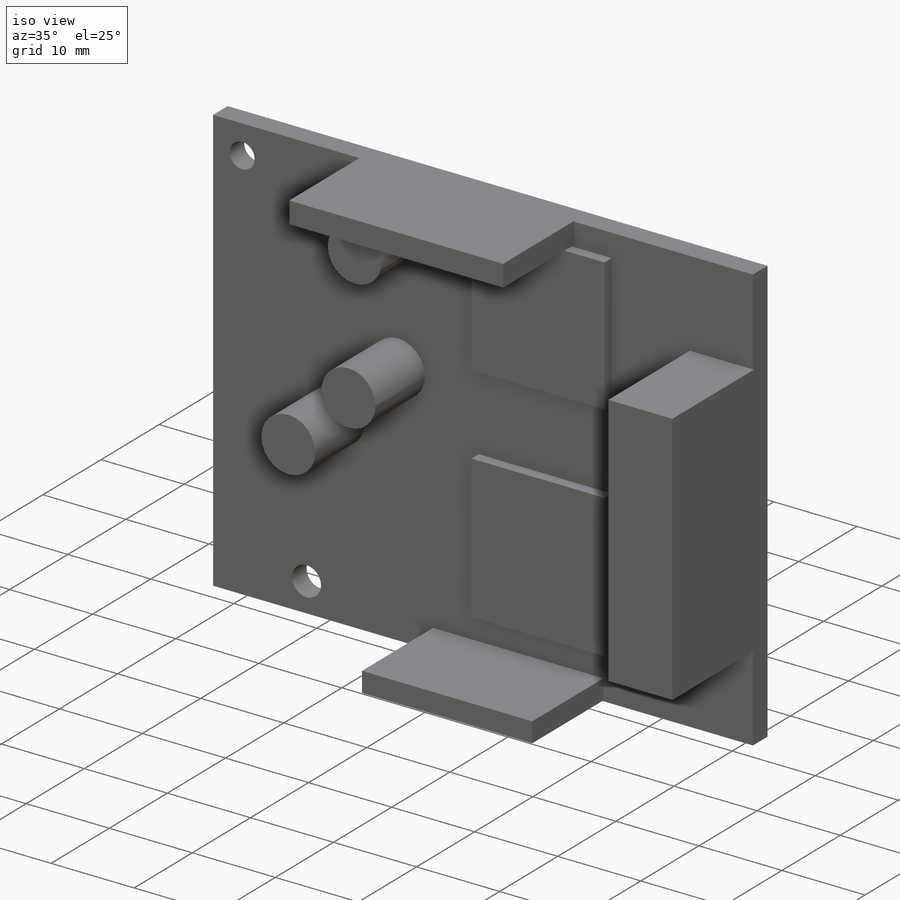
[diagram: iso view]
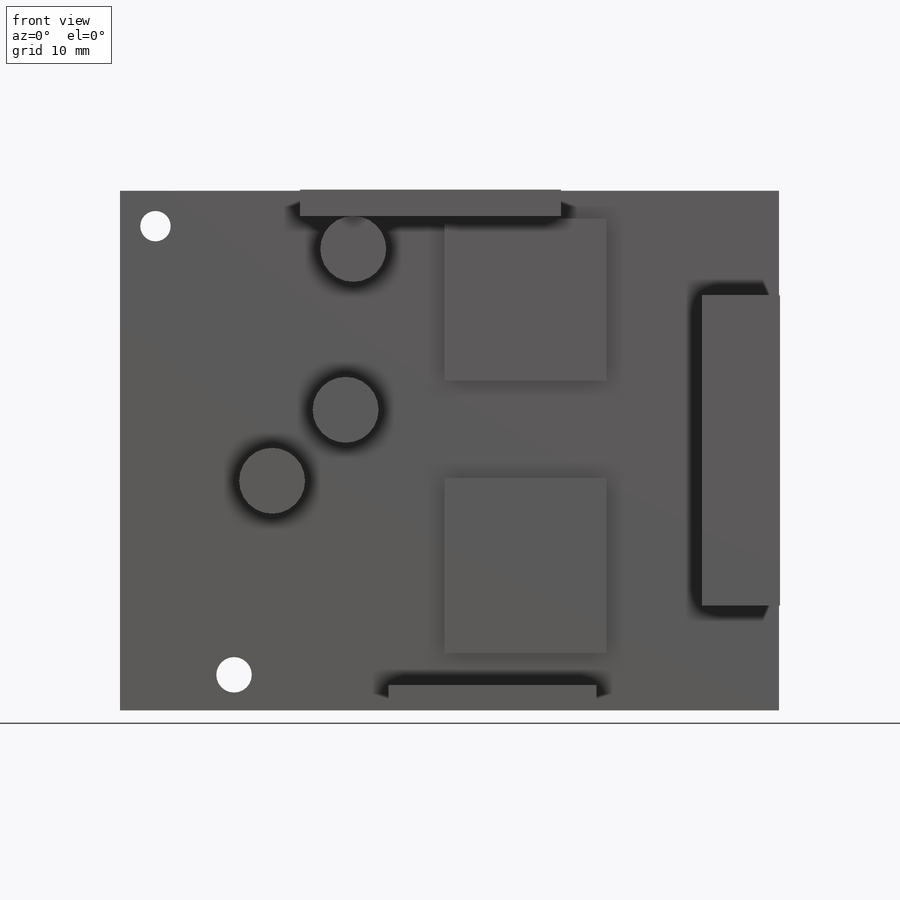
[diagram: front view]
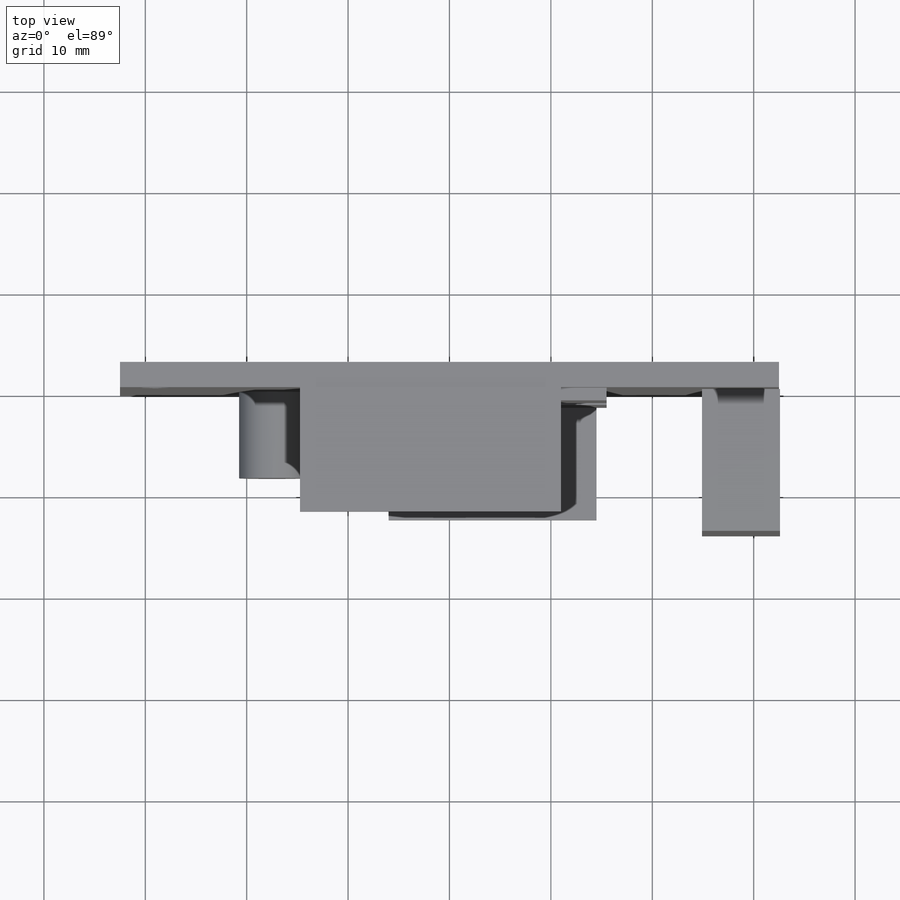
[diagram: top view]
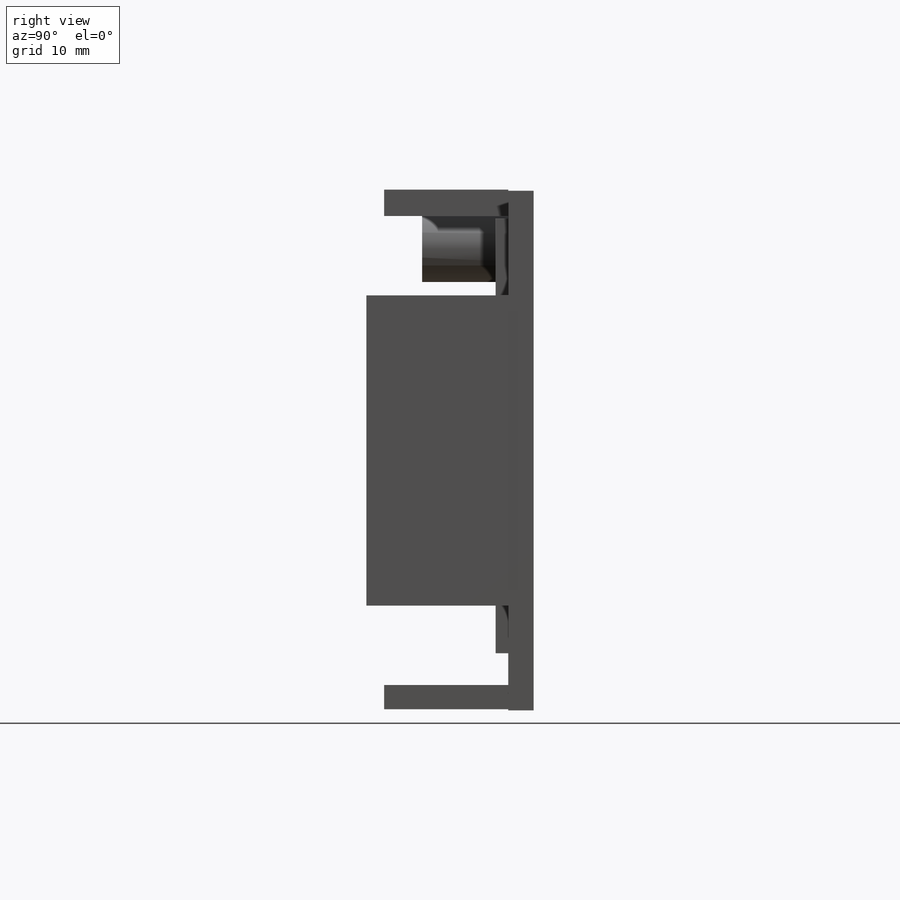
[diagram: right view]
SOLIDWORKS PART (.sldprt)
format: sldprt  version: not decoded by parser v0  size: 263,168 bytes
history: native  units: mm
features: sketch x14, extrude x11, cut_extrude x3, material x1 (+13 scaffold rows collapsed)
feature tree (42):
  scaffold x13  (default folders/planes/origin — collapsed)
  material  "Material <not specified>"
  sketch  "Sketch1"  dims[D1=6.5mm]
  extrude  "Boss-Extrude1"  Depth=8.5mm
  sketch  "Sketch3"
  extrude  "Boss-Extrude2"  Depth=2.5mm
  sketch  "Sketch4"  dims[D1=7.6mm]
  extrude  "Boss-Extrude3"  Depth=14mm
  sketch  "Sketch5"  dims[D1=~4.870711mm]
  extrude  "Boss-Extrude4"  Depth=8.5mm
  sketch  "Sketch6"
  extrude  "Boss-Extrude5"  Depth=12.25mm
  sketch  "Sketch8"  dims[D1=~3.317255mm]
  extrude  "Boss-Extrude9"  Depth=8.5mm
  sketch  "Sketch9"
  extrude  "Boss-Extrude10"  Depth=12.25mm
  sketch  "Sketch10"
  cut_extrude  "Cut-Extrude1"  Depth=0.1mm
  sketch  "Sketch12"
  extrude  "Boss-Extrude11"  Depth=0.1mm
  sketch  "Sketch14"
  extrude  "Boss-Extrude12"  Depth=0.1mm
  sketch  "Sketch15"  dims[D1=~2.918358mm]
  cut_extrude  "Cut-Extrude2"  [1 undecoded]
  sketch  "Sketch16"  dims[D1=~2.193907mm]
  cut_extrude  "Cut-Extrude3"  [1 undecoded]
  sketch  "Sketch17"
  extrude  "Boss-Extrude13"  Depth=1.25mm
  sketch  "Sketch18"
  extrude  "Boss-Extrude14"  Depth=1.25mm
decode coverage: 18 of 28 modeling features carry decoded parameters
note: ~ marks probable driven/reference dimensions
note: 2 parameter values undecoded
note: suppression state not decoded; provenance and decode notes live in map.json
